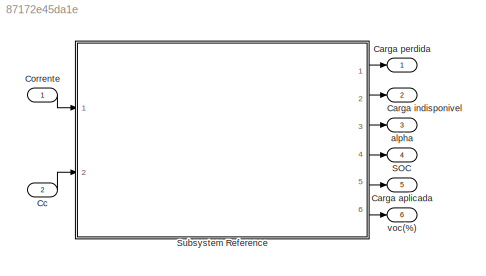
MODEL slx_87172e45da1e
KIND model
CONFIG AbsTol = auto
CONFIG EnableMultiTasking = off
CONFIG FixedStep = auto
CONFIG MaxStep = auto
CONFIG MinStep = auto
CONFIG RelTol = 1e-3
CONFIG SampleTimeConstraint = Unconstrained
CONFIG SolverName = VariableStepAuto
CONFIG StartTime = 0.0
CONFIG StopTime = 10.0
BLOCK [Outport] Carga aplicada
  Port = 5
BLOCK [Outport] Carga indisponivel
  Port = 2
BLOCK [Outport] Carga perdida
BLOCK [Inport] Cc
  Port = 2
BLOCK [Inport] Corrente
BLOCK [Outport] SOC
  Port = 4
BLOCK [SubSystem] Subsystem Reference
  Ports = [2, 6]
  ReferencedSubsystem = Rahkmatov_Vrudhula
  RequestExecContextInheritance = off
BLOCK [Outport] alpha
  Port = 3
BLOCK [Outport] voc(%)
  Port = 6
LINE Cc:1 -> Subsystem Reference:2
LINE Corrente:1 -> Subsystem Reference:1
LINE Subsystem Reference:1 -> Carga perdida:1
LINE Subsystem Reference:2 -> Carga indisponivel:1
LINE Subsystem Reference:3 -> alpha:1
LINE Subsystem Reference:4 -> SOC:1
LINE Subsystem Reference:5 -> Carga aplicada:1
LINE Subsystem Reference:6 -> voc(%):1
